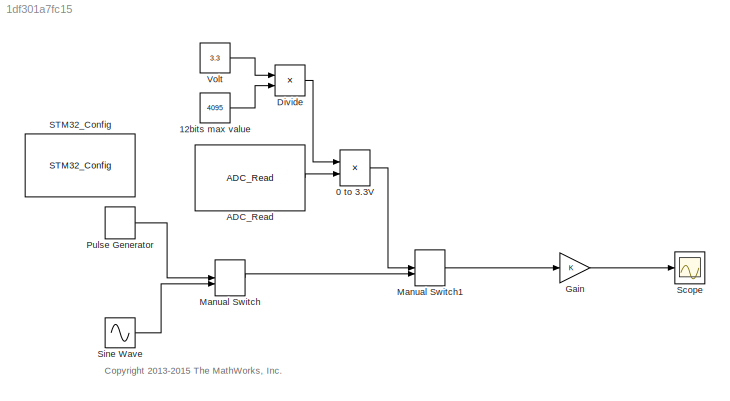
MODEL slx_1df301a7fc15
KIND model
CONFIG AbsTol = auto
CONFIG EnableMultiTasking = on
CONFIG FixedStep = auto
CONFIG MaxStep = auto
CONFIG MinStep = auto
CONFIG RelTol = 1e-3
CONFIG SampleTimeConstraint = Unconstrained
CONFIG Solver = FixedStepDiscrete
CONFIG SolverName = FixedStepDiscrete
CONFIG StartTime = 0.0
CONFIG StopTime = inf
BLOCK [Product] 0 to 3.3V
  InputSameDT = off
  OutDataTypeStr = Inherit: Inherit via internal rule
  Ports = [2, 1]
  SaturateOnIntegerOverflow = off
BLOCK [Constant] 12bits max value
  Value = 4095
BLOCK [Reference] ADC_Read  REF=ADC_Lib/ADC_Read
  Ports = [0, 1]
  SourceBlock = ADC_Lib/ADC_Read
  SourceProductName = Target Support Package - STM32 Adapter
  SourceType = ADC_Read
BLOCK [Product] Divide
  InputSameDT = off
  Inputs = */
  OutDataTypeStr = Inherit: Inherit via internal rule
  Ports = [2, 1]
  RndMeth = Floor
  SaturateOnIntegerOverflow = off
BLOCK [Gain] Gain
  OutDataTypeStr = Inherit: Inherit via internal rule
  ParamDataTypeStr = Inherit: Inherit via internal rule
  SaturateOnIntegerOverflow = off
BLOCK [ManualSwitch] Manual Switch
  CurrentSetting = 0
BLOCK [ManualSwitch] Manual Switch1
BLOCK [DiscretePulseGenerator] Pulse Generator
  Amplitude = 3
  AttributesFormatString = SampleTime=%<SampleTime>
  Period = 10
  Ports = [0, 1]
  PulseWidth = 5
  SampleTime = 0.1
BLOCK [Reference] STM32_Config  REF=STM32_Config_Lib/STM32_Config
  Ports = []
  Priority = 0
  SourceBlock = STM32_Config_Lib/STM32_Config
  SourceProductName = Target Support Package - STM32 Adapter
  SourceType = STM32_Config
BLOCK [Scope] Scope
  ExtModeLoggingTrig = on
  Floating = off
  NumInputPorts = 1
  Ports = [1]
  ScopeSpecificationString = Simulink.scopes.TimeScopeBlockCfg('CurrentConfiguration', extmgr.ConfigurationSet(extmgr.Configuration('Core','General UI',true,'FigureColor',[0.156862745098039 0.156862745098039 0.156862745098039]),extmgr.Configuration('Core','Source UI',true),extmgr.Configuration('Sources','WiredSimulink',true,'DataLoggingSaveFormat','StructureWithTime','DataLoggingLimitDataPoints',true,'DataLoggingDecimation','...<+2792ch>
BLOCK [Sin] Sine Wave
  Amplitude = 2
  AttributesFormatString = SampleTime=%<SampleTime>
  Ports = [0, 1]
  SampleTime = 0.1
  Samples = 20
  SineType = Sample based
BLOCK [Constant] Volt
  OutDataTypeStr = single
  Value = 3.3
ANNOTATION (root): <copyright redacted>
LINE 0 to 3.3V:1 -> Manual Switch1:1
LINE 12bits max value:1 -> Divide:2
LINE ADC_Read:1 -> 0 to 3.3V:2
LINE Divide:1 -> 0 to 3.3V:1
LINE Gain:1 -> Scope:1
LINE Manual Switch1:1 -> Gain:1
LINE Manual Switch:1 -> Manual Switch1:2
LINE Pulse Generator:1 -> Manual Switch:1
LINE Sine Wave:1 -> Manual Switch:2
LINE Volt:1 -> Divide:1
